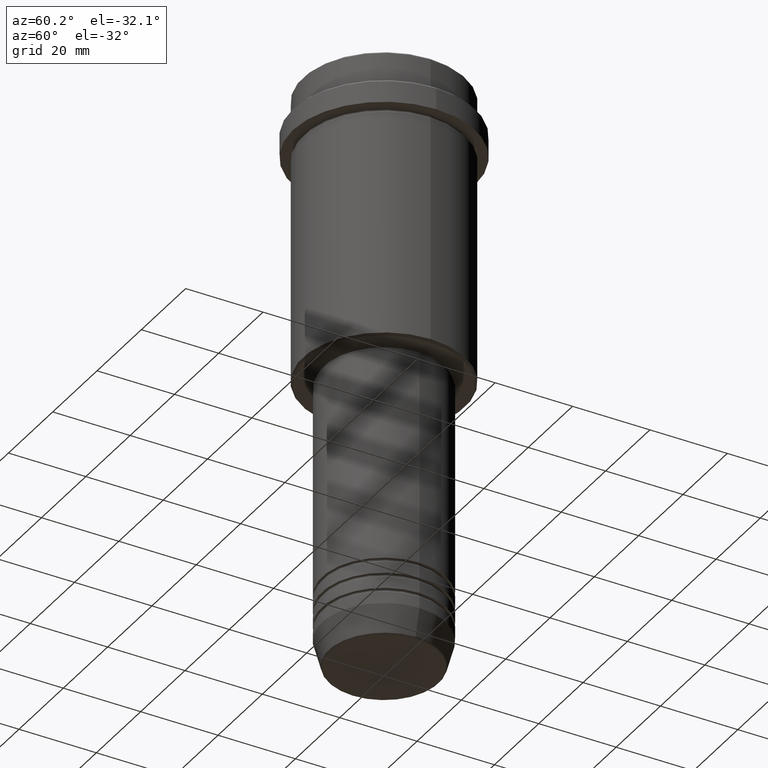
[diagram: clean part render]
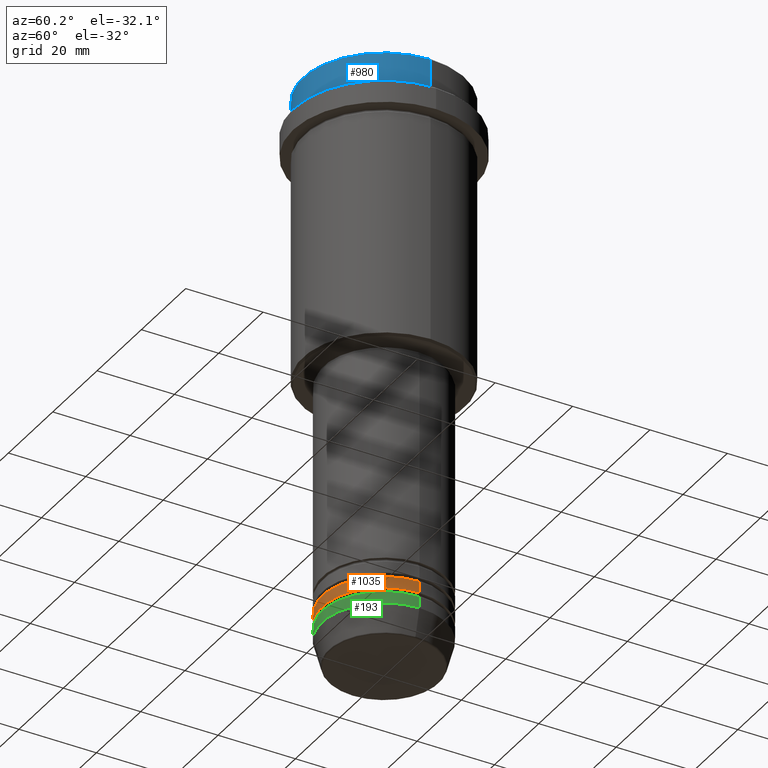
[diagram: same view with three faces highlighted in distinct colors, each labeled with its STEP entity id]
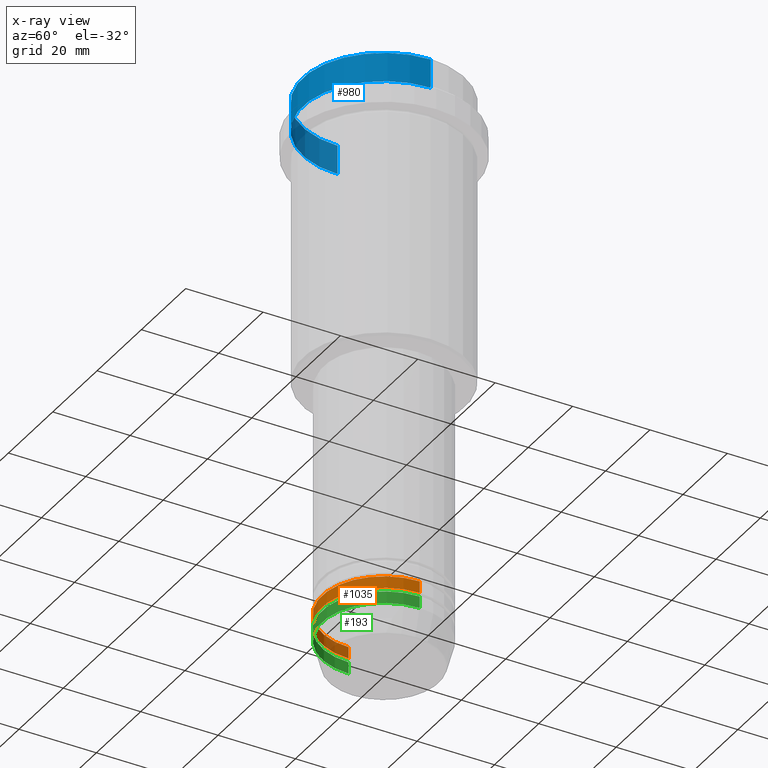
[diagram: x-ray of the same camera — body ghosted, the three highlighted faces saturated]
A machine part, auxiliary view with three faces highlighted in distinct colors.
The next image is the same camera in x-ray (body ghosted, the three faces saturated) — at least one of them is partly hidden behind the body in this view.
Their STEP definitions:

[orange] entity #1035 — the highlighted cylindrical surface (partial cylindrical patch) has radius 16 mm, axis along (-0, -0, 1).
#36 = CARTESIAN_POINT ( 'NONE',  ( -16.00000000000000000, 1.959434878635765131E-15, -135.9999999999998863 ) ) ;
#44 = LINE ( 'NONE', #485, #234 ) ;
#55 = LINE ( 'NONE', #945, #736 ) ;
#76 = CARTESIAN_POINT ( 'NONE',  ( 16.00000000000000000, 0.000000000000000000, -135.9999999999998863 ) ) ;
#94 = CARTESIAN_POINT ( 'NONE',  ( 16.00000000000000000, 0.000000000000000000, -138.9999999999999147 ) ) ;
#111 = CYLINDRICAL_SURFACE ( 'NONE', #312, 16.00000000000000000 ) ;
#130 = ORIENTED_EDGE ( 'NONE', *, *, #816, .T. ) ;
#173 = DIRECTION ( 'NONE',  ( -0.000000000000000000, -0.000000000000000000, 1.000000000000000000 ) ) ;
#182 = VERTEX_POINT ( 'NONE', #94 ) ;
#234 = VECTOR ( 'NONE', #501, 1000.000000000000000 ) ;
#235 = AXIS2_PLACEMENT_3D ( 'NONE', #1205, #671, #965 ) ;
#251 = VERTEX_POINT ( 'NONE', #36 ) ;
#311 = CIRCLE ( 'NONE', #235, 16.00000000000000000 ) ;
#312 = AXIS2_PLACEMENT_3D ( 'NONE', #332, #1404, #427 ) ;
#332 = CARTESIAN_POINT ( 'NONE',  ( 0.000000000000000000, 0.000000000000000000, 0.000000000000000000 ) ) ;
#359 = EDGE_CURVE ( 'NONE', #1126, #251, #44, .T. ) ;
#368 = ORIENTED_EDGE ( 'NONE', *, *, #438, .T. ) ;
#427 = DIRECTION ( 'NONE',  ( 1.000000000000000000, 0.000000000000000000, 0.000000000000000000 ) ) ;
#438 = EDGE_CURVE ( 'NONE', #1126, #182, #475, .T. ) ;
#475 = CIRCLE ( 'NONE', #934, 16.00000000000000000 ) ;
#485 = CARTESIAN_POINT ( 'NONE',  ( -16.00000000000000000, 1.959434878635765131E-15, 0.000000000000000000 ) ) ;
#498 = DIRECTION ( 'NONE',  ( -0.000000000000000000, -0.000000000000000000, 1.000000000000000000 ) ) ;
#501 = DIRECTION ( 'NONE',  ( -0.000000000000000000, -0.000000000000000000, 1.000000000000000000 ) ) ;
#523 = DIRECTION ( 'NONE',  ( 1.000000000000000000, 0.000000000000000000, 0.000000000000000000 ) ) ;
#577 = ORIENTED_EDGE ( 'NONE', *, *, #1084, .F. ) ;
#671 = DIRECTION ( 'NONE',  ( -0.000000000000000000, -0.000000000000000000, 1.000000000000000000 ) ) ;
#736 = VECTOR ( 'NONE', #498, 1000.000000000000000 ) ;
#816 = EDGE_CURVE ( 'NONE', #182, #1385, #55, .T. ) ;
#830 = ORIENTED_EDGE ( 'NONE', *, *, #359, .F. ) ;
#934 = AXIS2_PLACEMENT_3D ( 'NONE', #1396, #173, #523 ) ;
#945 = CARTESIAN_POINT ( 'NONE',  ( 16.00000000000000000, 0.000000000000000000, 0.000000000000000000 ) ) ;
#965 = DIRECTION ( 'NONE',  ( 1.000000000000000000, 0.000000000000000000, 0.000000000000000000 ) ) ;
#1035 = ADVANCED_FACE ( 'NONE', ( #1307 ), #111, .T. ) ;
#1084 = EDGE_CURVE ( 'NONE', #251, #1385, #311, .T. ) ;
#1111 = CARTESIAN_POINT ( 'NONE',  ( -16.00000000000000000, 1.959434878635765131E-15, -138.9999999999999147 ) ) ;
#1126 = VERTEX_POINT ( 'NONE', #1111 ) ;
#1182 = EDGE_LOOP ( 'NONE', ( #830, #368, #130, #577 ) ) ;
#1205 = CARTESIAN_POINT ( 'NONE',  ( 0.000000000000000000, 0.000000000000000000, -135.9999999999998863 ) ) ;
#1307 = FACE_OUTER_BOUND ( 'NONE', #1182, .T. ) ;
#1385 = VERTEX_POINT ( 'NONE', #76 ) ;
#1396 = CARTESIAN_POINT ( 'NONE',  ( 0.000000000000000000, 0.000000000000000000, -138.9999999999999147 ) ) ;
#1404 = DIRECTION ( 'NONE',  ( -0.000000000000000000, -0.000000000000000000, 1.000000000000000000 ) ) ;

[blue] entity #980 — the highlighted cylindrical surface (partial cylindrical patch) has radius 21 mm, axis along (-0, -0, 1).
#38 = VERTEX_POINT ( 'NONE', #936 ) ;
#72 = DIRECTION ( 'NONE',  ( 1.000000000000000000, 0.000000000000000000, 0.000000000000000000 ) ) ;
#83 = LINE ( 'NONE', #1399, #215 ) ;
#194 = CARTESIAN_POINT ( 'NONE',  ( 21.00000000000000000, 0.000000000000000000, 0.000000000000000000 ) ) ;
#208 = CYLINDRICAL_SURFACE ( 'NONE', #798, 21.00000000000000000 ) ;
#215 = VECTOR ( 'NONE', #530, 1000.000000000000000 ) ;
#229 = DIRECTION ( 'NONE',  ( 1.000000000000000000, 0.000000000000000000, 0.000000000000000000 ) ) ;
#327 = VECTOR ( 'NONE', #630, 1000.000000000000000 ) ;
#358 = CARTESIAN_POINT ( 'NONE',  ( 0.000000000000000000, 0.000000000000000000, -0.5000000000000108802 ) ) ;
#375 = EDGE_CURVE ( 'NONE', #545, #770, #553, .T. ) ;
#384 = CARTESIAN_POINT ( 'NONE',  ( 21.00000000000000000, 0.000000000000000000, -0.5000000000000108802 ) ) ;
#443 = CARTESIAN_POINT ( 'NONE',  ( 0.000000000000000000, 0.000000000000000000, 0.000000000000000000 ) ) ;
#530 = DIRECTION ( 'NONE',  ( -0.000000000000000000, -0.000000000000000000, 1.000000000000000000 ) ) ;
#538 = EDGE_CURVE ( 'NONE', #770, #920, #1167, .T. ) ;
#545 = VERTEX_POINT ( 'NONE', #1062 ) ;
#553 = CIRCLE ( 'NONE', #1022, 21.00000000000000000 ) ;
#630 = DIRECTION ( 'NONE',  ( -0.000000000000000000, -0.000000000000000000, 1.000000000000000000 ) ) ;
#670 = EDGE_LOOP ( 'NONE', ( #1260, #1110, #1356, #1288 ) ) ;
#706 = DIRECTION ( 'NONE',  ( 1.000000000000000000, 0.000000000000000000, 0.000000000000000000 ) ) ;
#756 = FACE_OUTER_BOUND ( 'NONE', #670, .T. ) ;
#759 = EDGE_CURVE ( 'NONE', #920, #38, #1183, .T. ) ;
#770 = VERTEX_POINT ( 'NONE', #996 ) ;
#798 = AXIS2_PLACEMENT_3D ( 'NONE', #443, #1294, #229 ) ;
#838 = DIRECTION ( 'NONE',  ( -0.000000000000000000, -0.000000000000000000, 1.000000000000000000 ) ) ;
#920 = VERTEX_POINT ( 'NONE', #384 ) ;
#936 = CARTESIAN_POINT ( 'NONE',  ( -21.00000000000000000, 2.571758278209441661E-15, -0.5000000000000108802 ) ) ;
#980 = ADVANCED_FACE ( 'NONE', ( #756 ), #208, .T. ) ;
#996 = CARTESIAN_POINT ( 'NONE',  ( 21.00000000000000000, 0.000000000000000000, -7.999999999999998224 ) ) ;
#1022 = AXIS2_PLACEMENT_3D ( 'NONE', #1386, #838, #72 ) ;
#1062 = CARTESIAN_POINT ( 'NONE',  ( -21.00000000000000000, 2.571758278209441661E-15, -7.999999999999998224 ) ) ;
#1089 = EDGE_CURVE ( 'NONE', #545, #38, #83, .T. ) ;
#1110 = ORIENTED_EDGE ( 'NONE', *, *, #375, .T. ) ;
#1167 = LINE ( 'NONE', #194, #327 ) ;
#1183 = CIRCLE ( 'NONE', #1315, 21.00000000000000000 ) ;
#1238 = DIRECTION ( 'NONE',  ( 0.000000000000000000, 0.000000000000000000, -1.000000000000000000 ) ) ;
#1260 = ORIENTED_EDGE ( 'NONE', *, *, #1089, .F. ) ;
#1288 = ORIENTED_EDGE ( 'NONE', *, *, #759, .T. ) ;
#1294 = DIRECTION ( 'NONE',  ( -0.000000000000000000, -0.000000000000000000, 1.000000000000000000 ) ) ;
#1315 = AXIS2_PLACEMENT_3D ( 'NONE', #358, #1238, #706 ) ;
#1356 = ORIENTED_EDGE ( 'NONE', *, *, #538, .T. ) ;
#1386 = CARTESIAN_POINT ( 'NONE',  ( 0.000000000000000000, 0.000000000000000000, -7.999999999999998224 ) ) ;
#1399 = CARTESIAN_POINT ( 'NONE',  ( -21.00000000000000000, 2.571758278209441661E-15, 0.000000000000000000 ) ) ;

[green] entity #193 — the highlighted cylindrical surface (partial cylindrical patch) has radius 16 mm, axis along (-0, -0, 1).
#1 = DIRECTION ( 'NONE',  ( -0.000000000000000000, -0.000000000000000000, 1.000000000000000000 ) ) ;
#80 = ORIENTED_EDGE ( 'NONE', *, *, #1067, .F. ) ;
#108 = CARTESIAN_POINT ( 'NONE',  ( 16.00000000000000000, 0.000000000000000000, 0.000000000000000000 ) ) ;
#193 = ADVANCED_FACE ( 'NONE', ( #216 ), #227, .T. ) ;
#209 = VERTEX_POINT ( 'NONE', #841 ) ;
#213 = EDGE_CURVE ( 'NONE', #704, #849, #472, .T. ) ;
#216 = FACE_OUTER_BOUND ( 'NONE', #1068, .T. ) ;
#227 = CYLINDRICAL_SURFACE ( 'NONE', #506, 16.00000000000000000 ) ;
#252 = ORIENTED_EDGE ( 'NONE', *, *, #698, .F. ) ;
#261 = VECTOR ( 'NONE', #1, 1000.000000000000000 ) ;
#266 = CARTESIAN_POINT ( 'NONE',  ( 16.00000000000000000, 0.000000000000000000, -143.0000000000000000 ) ) ;
#281 = EDGE_CURVE ( 'NONE', #209, #704, #451, .T. ) ;
#339 = DIRECTION ( 'NONE',  ( -0.000000000000000000, -0.000000000000000000, 1.000000000000000000 ) ) ;
#352 = LINE ( 'NONE', #684, #1207 ) ;
#404 = ORIENTED_EDGE ( 'NONE', *, *, #213, .T. ) ;
#406 = CARTESIAN_POINT ( 'NONE',  ( 16.00000000000000000, 0.000000000000000000, -139.9999999999999716 ) ) ;
#451 = CIRCLE ( 'NONE', #1226, 16.00000000000000000 ) ;
#469 = ORIENTED_EDGE ( 'NONE', *, *, #281, .T. ) ;
#472 = LINE ( 'NONE', #108, #261 ) ;
#493 = DIRECTION ( 'NONE',  ( 1.000000000000000000, 0.000000000000000000, 0.000000000000000000 ) ) ;
#506 = AXIS2_PLACEMENT_3D ( 'NONE', #542, #1169, #851 ) ;
#542 = CARTESIAN_POINT ( 'NONE',  ( 0.000000000000000000, 0.000000000000000000, 0.000000000000000000 ) ) ;
#684 = CARTESIAN_POINT ( 'NONE',  ( -16.00000000000000000, 1.959434878635765131E-15, 0.000000000000000000 ) ) ;
#698 = EDGE_CURVE ( 'NONE', #209, #1274, #352, .T. ) ;
#704 = VERTEX_POINT ( 'NONE', #266 ) ;
#708 = DIRECTION ( 'NONE',  ( -0.000000000000000000, -0.000000000000000000, 1.000000000000000000 ) ) ;
#807 = DIRECTION ( 'NONE',  ( -0.000000000000000000, -0.000000000000000000, 1.000000000000000000 ) ) ;
#841 = CARTESIAN_POINT ( 'NONE',  ( -16.00000000000000000, 1.959434878635765131E-15, -143.0000000000000000 ) ) ;
#849 = VERTEX_POINT ( 'NONE', #406 ) ;
#851 = DIRECTION ( 'NONE',  ( 1.000000000000000000, 0.000000000000000000, 0.000000000000000000 ) ) ;
#907 = AXIS2_PLACEMENT_3D ( 'NONE', #975, #339, #1414 ) ;
#960 = CIRCLE ( 'NONE', #907, 16.00000000000000000 ) ;
#975 = CARTESIAN_POINT ( 'NONE',  ( 0.000000000000000000, 0.000000000000000000, -139.9999999999999716 ) ) ;
#1067 = EDGE_CURVE ( 'NONE', #1274, #849, #960, .T. ) ;
#1068 = EDGE_LOOP ( 'NONE', ( #252, #469, #404, #80 ) ) ;
#1169 = DIRECTION ( 'NONE',  ( -0.000000000000000000, -0.000000000000000000, 1.000000000000000000 ) ) ;
#1207 = VECTOR ( 'NONE', #807, 1000.000000000000000 ) ;
#1226 = AXIS2_PLACEMENT_3D ( 'NONE', #1340, #708, #493 ) ;
#1274 = VERTEX_POINT ( 'NONE', #1354 ) ;
#1340 = CARTESIAN_POINT ( 'NONE',  ( 0.000000000000000000, 0.000000000000000000, -143.0000000000000000 ) ) ;
#1354 = CARTESIAN_POINT ( 'NONE',  ( -16.00000000000000000, 1.959434878635765131E-15, -139.9999999999999716 ) ) ;
#1414 = DIRECTION ( 'NONE',  ( 1.000000000000000000, 0.000000000000000000, 0.000000000000000000 ) ) ;